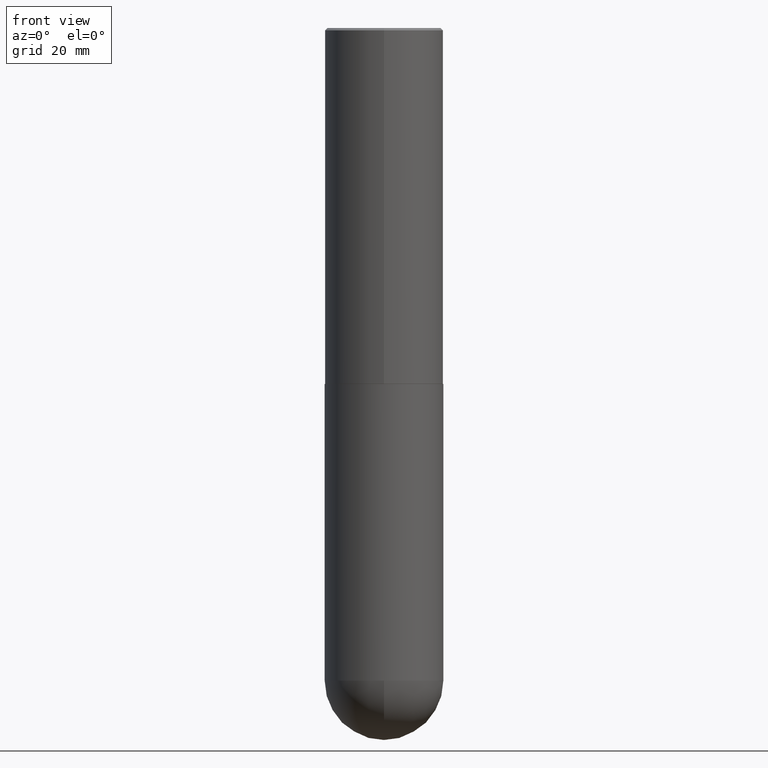
[diagram: clean part render]
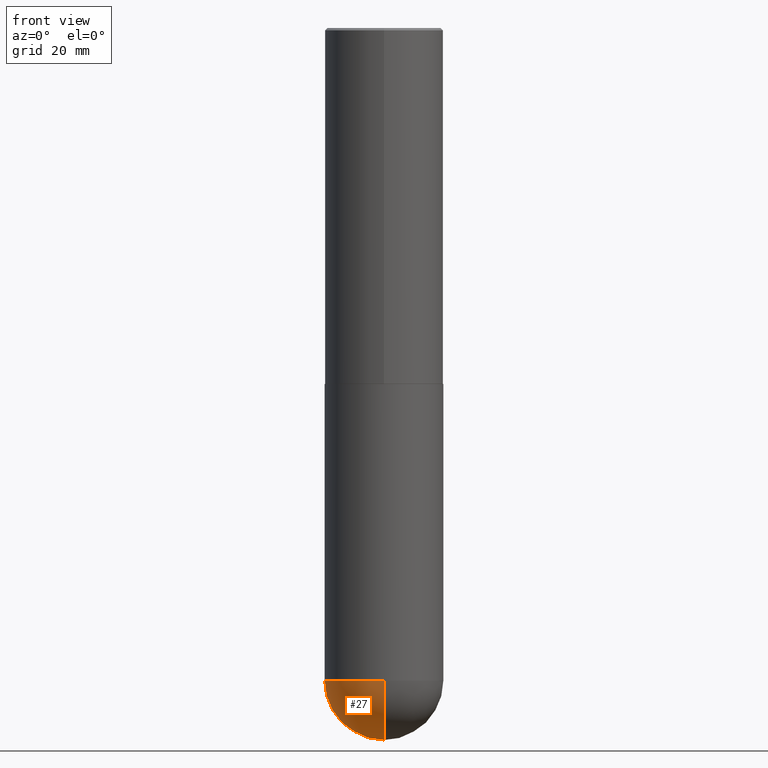
[diagram: same view with one face highlighted and labeled with its STEP entity id]
A machine part, front view. The second image highlights one B-rep face of the part: STEP entity #27.
In plain terms, the highlighted spherical surface has radius 12.7 mm.
Its self-contained STEP definition (entity closure, byte-faithful):
#6 = EDGE_CURVE ( 'NONE', #155, #311, #404, .T. ) ;
#21 = AXIS2_PLACEMENT_3D ( 'NONE', #381, #295, #389 ) ;
#27 = ADVANCED_FACE ( 'NONE', ( #69 ), #264, .T. ) ;
#56 = AXIS2_PLACEMENT_3D ( 'NONE', #221, #216, #190 ) ;
#59 = ORIENTED_EDGE ( 'NONE', *, *, #107, .T. ) ;
#69 = FACE_OUTER_BOUND ( 'NONE', #330, .T. ) ;
#92 = CARTESIAN_POINT ( 'NONE',  ( 1.345007843401825128E-28, -1.920314736363730603E-14, -5.500000000000000888 ) ) ;
#94 = CARTESIAN_POINT ( 'NONE',  ( -3.552713678800369978E-15, -0.5000000000000196509, -5.499999999999999112 ) ) ;
#97 = CARTESIAN_POINT ( 'NONE',  ( 1.436307221642642309E-28, -2.139245423122024710E-14, -6.000000000000001776 ) ) ;
#99 = VERTEX_POINT ( 'NONE', #97 ) ;
#107 = EDGE_CURVE ( 'NONE', #99, #253, #192, .T. ) ;
#108 = CARTESIAN_POINT ( 'NONE',  ( 1.311895865610436840E-28, -1.967732973177735475E-14, -5.500000000000000888 ) ) ;
#123 = ORIENTED_EDGE ( 'NONE', *, *, #6, .F. ) ;
#125 = ORIENTED_EDGE ( 'NONE', *, *, #137, .F. ) ;
#128 = AXIS2_PLACEMENT_3D ( 'NONE', #164, #226, #352 ) ;
#137 = EDGE_CURVE ( 'NONE', #311, #253, #284, .T. ) ;
#155 = VERTEX_POINT ( 'NONE', #351 ) ;
#164 = CARTESIAN_POINT ( 'NONE',  ( 1.345007843401825128E-28, -1.920314736363730603E-14, -5.500000000000000888 ) ) ;
#184 = DIRECTION ( 'NONE',  ( 1.000000000000000000, -6.982962677686270655E-15, 0.000000000000000000 ) ) ;
#190 = DIRECTION ( 'NONE',  ( 6.982962677686265922E-15, 1.000000000000000000, -4.370956789862816416E-15 ) ) ;
#192 = CIRCLE ( 'NONE', #21, 0.5000000000000005551 ) ;
#200 = ORIENTED_EDGE ( 'NONE', *, *, #309, .F. ) ;
#216 = DIRECTION ( 'NONE',  ( -1.000000000000000000, 6.982962677686265922E-15, -4.883557194083112901E-29 ) ) ;
#221 = CARTESIAN_POINT ( 'NONE',  ( 1.311895865610436840E-28, -1.967732973177735475E-14, -5.500000000000000888 ) ) ;
#222 = DIRECTION ( 'NONE',  ( -2.445468806185136597E-29, 3.491481338843145583E-15, 1.000000000000000000 ) ) ;
#226 = DIRECTION ( 'NONE',  ( -2.445468806185136597E-29, 3.491481338843145583E-15, 1.000000000000000000 ) ) ;
#231 = CARTESIAN_POINT ( 'NONE',  ( -0.5000000000000000000, -1.128608201128287263E-14, -5.500000000000000888 ) ) ;
#232 = DIRECTION ( 'NONE',  ( 1.000000000000000000, -6.982962677686265922E-15, 4.883557194083112340E-29 ) ) ;
#253 = VERTEX_POINT ( 'NONE', #94 ) ;
#264 = SPHERICAL_SURFACE ( 'NONE', #56, 0.5000000000000005551 ) ;
#270 = DIRECTION ( 'NONE',  ( 6.982962677686265922E-15, 1.000000000000000000, 0.000000000000000000 ) ) ;
#284 = CIRCLE ( 'NONE', #296, 0.5000000000000000000 ) ;
#295 = DIRECTION ( 'NONE',  ( -1.000000000000000000, 7.105427357601001070E-15, -4.926315508542082329E-29 ) ) ;
#296 = AXIS2_PLACEMENT_3D ( 'NONE', #92, #222, #184 ) ;
#309 = EDGE_CURVE ( 'NONE', #99, #155, #411, .T. ) ;
#311 = VERTEX_POINT ( 'NONE', #231 ) ;
#330 = EDGE_LOOP ( 'NONE', ( #200, #59, #125, #123 ) ) ;
#351 = CARTESIAN_POINT ( 'NONE',  ( 3.491481338843267462E-15, 0.4999999999999808487, -5.500000000000002665 ) ) ;
#352 = DIRECTION ( 'NONE',  ( 1.000000000000000000, -6.982962677686270655E-15, 0.000000000000000000 ) ) ;
#381 = CARTESIAN_POINT ( 'NONE',  ( 1.311895865610436840E-28, -1.967732973177735475E-14, -5.500000000000000888 ) ) ;
#389 = DIRECTION ( 'NONE',  ( -7.105427357601000281E-15, -1.000000000000000000, 0.000000000000000000 ) ) ;
#393 = AXIS2_PLACEMENT_3D ( 'NONE', #108, #232, #270 ) ;
#404 = CIRCLE ( 'NONE', #128, 0.5000000000000000000 ) ;
#411 = CIRCLE ( 'NONE', #393, 0.5000000000000005551 ) ;